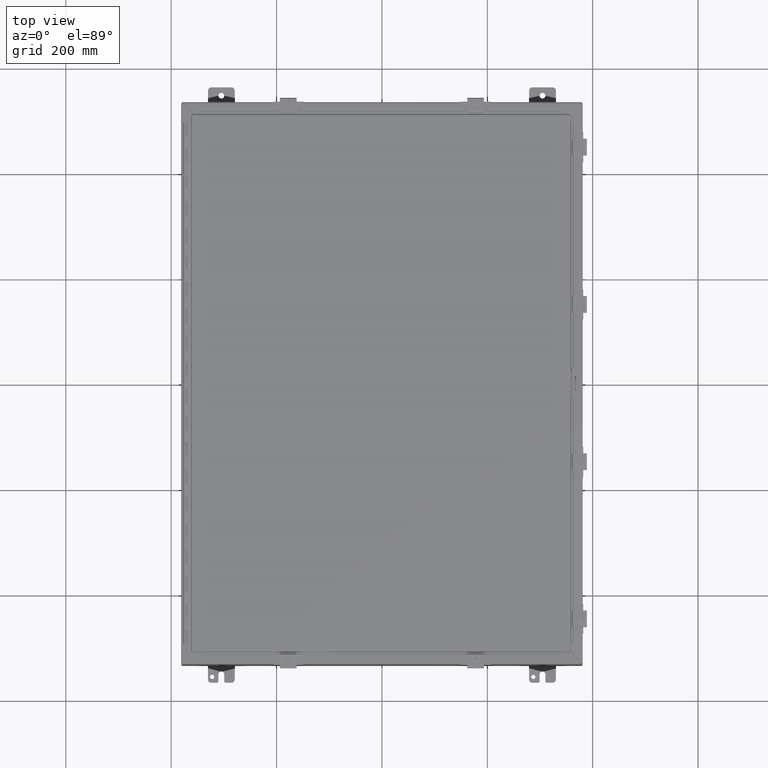
[diagram: clean part render]
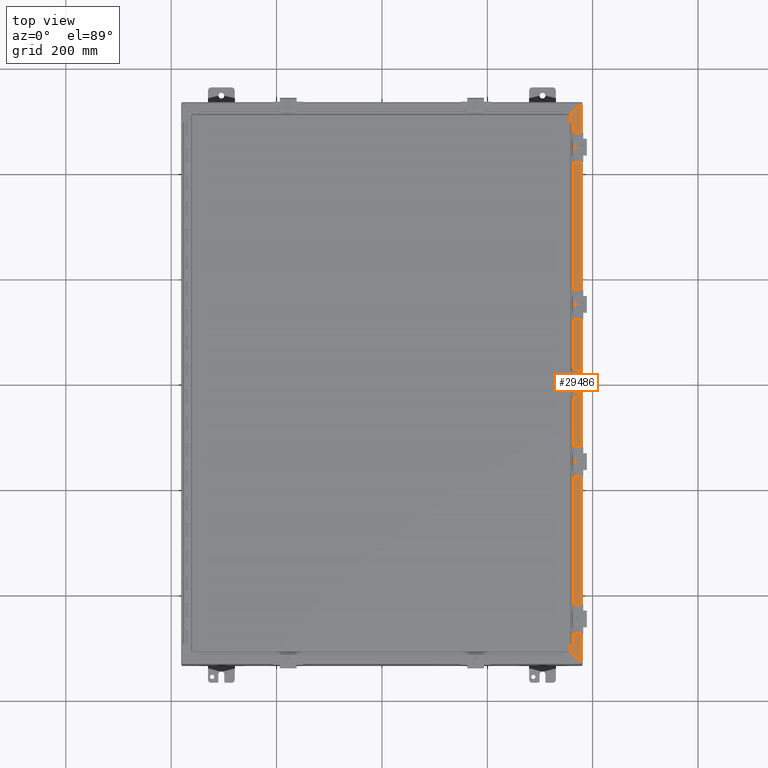
[diagram: same view with one face highlighted and labeled with its STEP entity id]
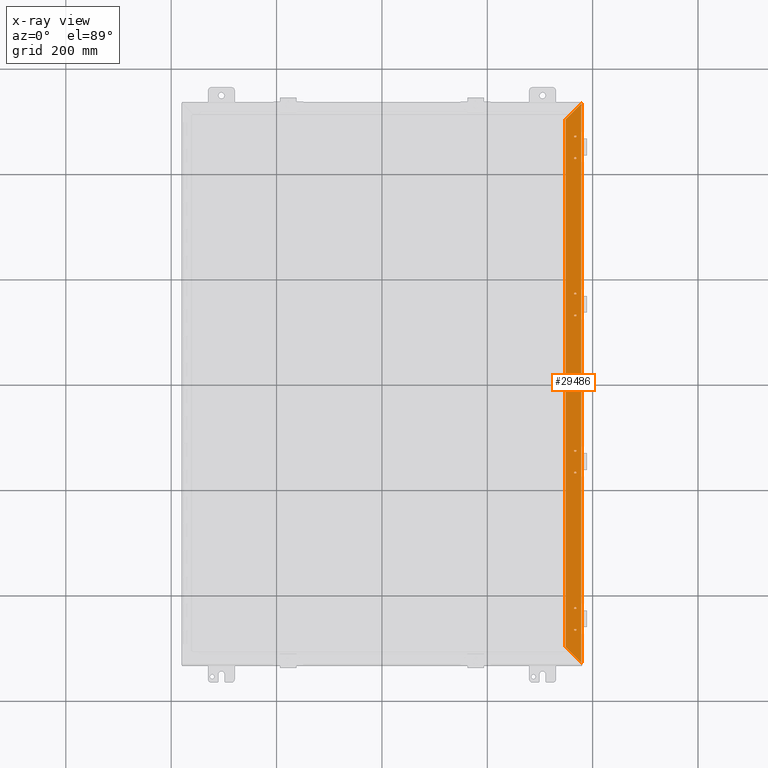
[diagram: x-ray of the same camera — body ghosted, the highlighted face saturated]
A machine part, top view. The second image highlights one B-rep face of the part: STEP entity #29486.
The next image is the same camera in x-ray: the body ghosted, the highlighted face saturated — about 0% of this face is hidden behind the body in this view.
In plain terms, the highlighted planar face has unit normal (0, 0, 1).
Its self-contained STEP definition (entity closure, byte-faithful):
#147 = LINE ( 'NONE', #39565, #36252 ) ;
#356 = VECTOR ( 'NONE', #57371, 39.37007874015748900 ) ;
#614 = DIRECTION ( 'NONE',  ( 1.000000000000000000, 0.0000000000000000000, 0.0000000000000000000 ) ) ;
#1069 = CIRCLE ( 'NONE', #9218, 0.06250000000000001400 ) ;
#1196 = VECTOR ( 'NONE', #40140, 39.37007874015748100 ) ;
#1222 = CARTESIAN_POINT ( 'NONE',  ( 14.41750000000004100, -6.750000000000048800, 8.000000000000030200 ) ) ;
#1224 = CIRCLE ( 'NONE', #22996, 0.06250000000000076300 ) ;
#1354 = EDGE_CURVE ( 'NONE', #31624, #9641, #40587, .T. ) ;
#1472 = DIRECTION ( 'NONE',  ( 0.0000000000000000000, -1.000000000000000000, 0.0000000000000000000 ) ) ;
#1707 = VECTOR ( 'NONE', #57162, 39.37007874015748100 ) ;
#1743 = DIRECTION ( 'NONE',  ( 1.000000000000000000, 0.0000000000000000000, 0.0000000000000000000 ) ) ;
#2043 = CARTESIAN_POINT ( 'NONE',  ( 14.48050000000004200, 18.49999999999995700, 8.000000000000023100 ) ) ;
#2323 = ORIENTED_EDGE ( 'NONE', *, *, #41902, .T. ) ;
#2618 = LINE ( 'NONE', #39609, #51890 ) ;
#2809 = EDGE_CURVE ( 'NONE', #51030, #15716, #50724, .T. ) ;
#2900 = EDGE_LOOP ( 'NONE', ( #32883, #22177, #13727, #33808 ) ) ;
#3260 = VECTOR ( 'NONE', #41837, 39.37007874015748900 ) ;
#3571 = VERTEX_POINT ( 'NONE', #15880 ) ;
#3626 = DIRECTION ( 'NONE',  ( 0.0000000000000000000, 0.0000000000000000000, -1.000000000000000000 ) ) ;
#3923 = AXIS2_PLACEMENT_3D ( 'NONE', #17632, #17433, #17380 ) ;
#5093 = EDGE_CURVE ( 'NONE', #27920, #40037, #11221, .T. ) ;
#5108 = CARTESIAN_POINT ( 'NONE',  ( 14.41750000000004100, -5.000000000000051500, 8.000000000000030200 ) ) ;
#5123 = ORIENTED_EDGE ( 'NONE', *, *, #30626, .T. ) ;
#5147 = ORIENTED_EDGE ( 'NONE', *, *, #34115, .T. ) ;
#5244 = VERTEX_POINT ( 'NONE', #48290 ) ;
#5544 = ORIENTED_EDGE ( 'NONE', *, *, #41427, .T. ) ;
#5676 = EDGE_LOOP ( 'NONE', ( #19042, #23242, #57213, #19012 ) ) ;
#5903 = VERTEX_POINT ( 'NONE', #18271 ) ;
#6335 = CARTESIAN_POINT ( 'NONE',  ( 14.48050000000004200, 18.37499999999995700, 8.000000000000023100 ) ) ;
#6354 = CARTESIAN_POINT ( 'NONE',  ( 14.48050000000004200, -18.50000000000005300, 8.000000000000030200 ) ) ;
#6458 = DIRECTION ( 'NONE',  ( -1.000000000000000000, 0.0000000000000000000, 0.0000000000000000000 ) ) ;
#6547 = VECTOR ( 'NONE', #22588, 39.37007874015748100 ) ;
#6969 = VERTEX_POINT ( 'NONE', #34572 ) ;
#7242 = DIRECTION ( 'NONE',  ( 0.0000000000000000000, 0.0000000000000000000, -1.000000000000000000 ) ) ;
#7251 = AXIS2_PLACEMENT_3D ( 'NONE', #43614, #15012, #48536 ) ;
#7503 = ORIENTED_EDGE ( 'NONE', *, *, #7835, .T. ) ;
#7651 = DIRECTION ( 'NONE',  ( 1.000000000000000000, 0.0000000000000000000, 0.0000000000000000000 ) ) ;
#7665 = LINE ( 'NONE', #52648, #51840 ) ;
#7700 = VERTEX_POINT ( 'NONE', #47071 ) ;
#7829 = CARTESIAN_POINT ( 'NONE',  ( 14.48050000000004200, -16.87500000000005300, 8.000000000000032000 ) ) ;
#7835 = EDGE_CURVE ( 'NONE', #8749, #7700, #46953, .T. ) ;
#8269 = LINE ( 'NONE', #23932, #19372 ) ;
#8275 = VERTEX_POINT ( 'NONE', #20884 ) ;
#8303 = CARTESIAN_POINT ( 'NONE',  ( 14.48050000000004200, 6.624999999999953800, 8.000000000000026600 ) ) ;
#8339 = VERTEX_POINT ( 'NONE', #18868 ) ;
#8350 = EDGE_LOOP ( 'NONE', ( #15692, #2323, #53378, #21778 ) ) ;
#8380 = VECTOR ( 'NONE', #39327, 39.37007874015748100 ) ;
#8551 = CARTESIAN_POINT ( 'NONE',  ( 14.48050000000004200, 6.749999999999952000, 8.000000000000026600 ) ) ;
#8749 = VERTEX_POINT ( 'NONE', #44265 ) ;
#8808 = ORIENTED_EDGE ( 'NONE', *, *, #60139, .T. ) ;
#9097 = VERTEX_POINT ( 'NONE', #15619 ) ;
#9112 = EDGE_LOOP ( 'NONE', ( #47831, #51290, #13375, #57409 ) ) ;
#9218 = AXIS2_PLACEMENT_3D ( 'NONE', #22030, #55638, #26827 ) ;
#9641 = VERTEX_POINT ( 'NONE', #48004 ) ;
#9803 = EDGE_CURVE ( 'NONE', #5903, #14774, #39660, .T. ) ;
#10234 = AXIS2_PLACEMENT_3D ( 'NONE', #59613, #59531, #59411 ) ;
#10512 = FACE_BOUND ( 'NONE', #12098, .T. ) ;
#10752 = CIRCLE ( 'NONE', #35844, 0.06249999999999967400 ) ;
#11071 = DIRECTION ( 'NONE',  ( 1.000000000000000000, 0.0000000000000000000, 0.0000000000000000000 ) ) ;
#11221 = LINE ( 'NONE', #56926, #36510 ) ;
#11369 = CARTESIAN_POINT ( 'NONE',  ( 14.41750000000004100, 5.062499999999953800, 8.000000000000026600 ) ) ;
#11785 = VECTOR ( 'NONE', #57032, 39.37007874015748100 ) ;
#11892 = EDGE_CURVE ( 'NONE', #16389, #36736, #7665, .T. ) ;
#11982 = FACE_BOUND ( 'NONE', #2900, .T. ) ;
#12098 = EDGE_LOOP ( 'NONE', ( #5544, #7503, #54342, #27606 ) ) ;
#12148 = CARTESIAN_POINT ( 'NONE',  ( 14.41750000000004100, -16.75000000000005300, 8.000000000000032000 ) ) ;
#12171 = EDGE_CURVE ( 'NONE', #17350, #34079, #40368, .T. ) ;
#12776 = DIRECTION ( 'NONE',  ( 1.000000000000000000, 0.0000000000000000000, 0.0000000000000000000 ) ) ;
#12810 = AXIS2_PLACEMENT_3D ( 'NONE', #11369, #44741, #16095 ) ;
#12933 = VERTEX_POINT ( 'NONE', #15452 ) ;
#12979 = CARTESIAN_POINT ( 'NONE',  ( 14.48050000000004200, 16.87499999999995700, 8.000000000000023100 ) ) ;
#13011 = ORIENTED_EDGE ( 'NONE', *, *, #5093, .T. ) ;
#13124 = CARTESIAN_POINT ( 'NONE',  ( 14.08450000000004300, 0.06250000000000001400, 8.000000000000040900 ) ) ;
#13370 = DIRECTION ( 'NONE',  ( 0.0000000000000000000, 0.0000000000000000000, -1.000000000000000000 ) ) ;
#13375 = ORIENTED_EDGE ( 'NONE', *, *, #56957, .T. ) ;
#13727 = ORIENTED_EDGE ( 'NONE', *, *, #45829, .T. ) ;
#14221 = EDGE_CURVE ( 'NONE', #5244, #3571, #54268, .T. ) ;
#14304 = EDGE_CURVE ( 'NONE', #12933, #47894, #38348, .T. ) ;
#14370 = VERTEX_POINT ( 'NONE', #52534 ) ;
#14774 = VERTEX_POINT ( 'NONE', #32649 ) ;
#14983 = EDGE_LOOP ( 'NONE', ( #22400, #37155, #20451, #39908 ) ) ;
#15012 = DIRECTION ( 'NONE',  ( 0.0000000000000000000, 0.0000000000000000000, 1.000000000000000000 ) ) ;
#15420 = CARTESIAN_POINT ( 'NONE',  ( 14.48050000000004200, -5.125000000000049700, 8.000000000000026600 ) ) ;
#15452 = CARTESIAN_POINT ( 'NONE',  ( 14.48050000000004200, 16.74999999999995700, 8.000000000000023100 ) ) ;
#15619 = CARTESIAN_POINT ( 'NONE',  ( 14.14750000000004200, -0.06250000000000001400, 8.000000000000040900 ) ) ;
#15692 = ORIENTED_EDGE ( 'NONE', *, *, #41439, .T. ) ;
#15716 = VERTEX_POINT ( 'NONE', #36937 ) ;
#15795 = ORIENTED_EDGE ( 'NONE', *, *, #22476, .T. ) ;
#15880 = CARTESIAN_POINT ( 'NONE',  ( 14.41750000000004100, -16.75000000000005300, 8.000000000000032000 ) ) ;
#16095 = DIRECTION ( 'NONE',  ( 0.0000000000000000000, 1.000000000000000000, 0.0000000000000000000 ) ) ;
#16389 = VERTEX_POINT ( 'NONE', #58526 ) ;
#16500 = AXIS2_PLACEMENT_3D ( 'NONE', #59117, #59035, #58991 ) ;
#17200 = CARTESIAN_POINT ( 'NONE',  ( 14.48050000000004200, -5.062500000000049700, 8.000000000000021300 ) ) ;
#17245 = ORIENTED_EDGE ( 'NONE', *, *, #47047, .T. ) ;
#17350 = VERTEX_POINT ( 'NONE', #28200 ) ;
#17380 = DIRECTION ( 'NONE',  ( 0.0000000000000000000, -1.000000000000000000, 0.0000000000000000000 ) ) ;
#17426 = EDGE_CURVE ( 'NONE', #34079, #6969, #34009, .T. ) ;
#17433 = DIRECTION ( 'NONE',  ( 0.0000000000000000000, 0.0000000000000000000, -1.000000000000000000 ) ) ;
#17496 = LINE ( 'NONE', #20109, #55740 ) ;
#17618 = DIRECTION ( 'NONE',  ( 0.0000000000000000000, 0.0000000000000000000, -1.000000000000000000 ) ) ;
#17632 = CARTESIAN_POINT ( 'NONE',  ( 14.48050000000004200, -6.687500000000049700, 8.000000000000021300 ) ) ;
#17951 = CARTESIAN_POINT ( 'NONE',  ( 14.41750000000004100, 5.124999999999952900, 8.000000000000026600 ) ) ;
#18173 = EDGE_CURVE ( 'NONE', #3571, #14370, #21159, .T. ) ;
#18200 = EDGE_LOOP ( 'NONE', ( #17245, #53720, #27504, #57812 ) ) ;
#18271 = CARTESIAN_POINT ( 'NONE',  ( 13.73025000000003700, 19.71920145654402000, 8.000000000000048000 ) ) ;
#18287 = AXIS2_PLACEMENT_3D ( 'NONE', #46273, #17618, #51210 ) ;
#18776 = CIRCLE ( 'NONE', #40771, 0.06250000000000076300 ) ;
#18868 = CARTESIAN_POINT ( 'NONE',  ( 14.41750000000004100, 6.624999999999953800, 8.000000000000026600 ) ) ;
#18900 = CIRCLE ( 'NONE', #58958, 0.06250000000000001400 ) ;
#19012 = ORIENTED_EDGE ( 'NONE', *, *, #21316, .T. ) ;
#19042 = ORIENTED_EDGE ( 'NONE', *, *, #11892, .T. ) ;
#19227 = DIRECTION ( 'NONE',  ( 0.0000000000000000000, 0.0000000000000000000, -1.000000000000000000 ) ) ;
#19315 = CARTESIAN_POINT ( 'NONE',  ( 14.48050000000004200, -6.625000000000050600, 8.000000000000026600 ) ) ;
#19372 = VECTOR ( 'NONE', #614, 39.37007874015748100 ) ;
#19413 = VERTEX_POINT ( 'NONE', #8551 ) ;
#19658 = VECTOR ( 'NONE', #7651, 39.37007874015748100 ) ;
#19880 = CIRCLE ( 'NONE', #26745, 0.06249999999999967400 ) ;
#19970 = EDGE_CURVE ( 'NONE', #36736, #46966, #40329, .T. ) ;
#20109 = CARTESIAN_POINT ( 'NONE',  ( 14.14750000000004200, -0.06250000000000001400, 8.000000000000040900 ) ) ;
#20451 = ORIENTED_EDGE ( 'NONE', *, *, #18173, .T. ) ;
#20612 = DIRECTION ( 'NONE',  ( 0.0000000000000000000, 1.000000000000000000, 0.0000000000000000000 ) ) ;
#20838 = CIRCLE ( 'NONE', #12810, 0.06249999999999967400 ) ;
#20884 = CARTESIAN_POINT ( 'NONE',  ( 14.89475000000004100, -20.88370145654401000, 8.000000000000008900 ) ) ;
#20976 = AXIS2_PLACEMENT_3D ( 'NONE', #40308, #40100, #40026 ) ;
#21159 = LINE ( 'NONE', #12148, #19658 ) ;
#21311 = VECTOR ( 'NONE', #27253, 39.37007874015748100 ) ;
#21316 = EDGE_CURVE ( 'NONE', #44579, #16389, #21324, .T. ) ;
#21324 = CIRCLE ( 'NONE', #3923, 0.06249999999999967400 ) ;
#21586 = FACE_BOUND ( 'NONE', #14983, .T. ) ;
#21706 = CARTESIAN_POINT ( 'NONE',  ( 14.48050000000004200, 5.124999999999952900, 8.000000000000026600 ) ) ;
#21778 = ORIENTED_EDGE ( 'NONE', *, *, #30548, .T. ) ;
#21949 = DIRECTION ( 'NONE',  ( 0.0000000000000000000, -1.000000000000000000, 0.0000000000000000000 ) ) ;
#22030 = CARTESIAN_POINT ( 'NONE',  ( 14.08450000000004300, -2.185478000000000500E-016, 8.000000000000051500 ) ) ;
#22177 = ORIENTED_EDGE ( 'NONE', *, *, #34936, .T. ) ;
#22283 = CARTESIAN_POINT ( 'NONE',  ( 14.41750000000004100, -18.37500000000005300, 8.000000000000032000 ) ) ;
#22400 = ORIENTED_EDGE ( 'NONE', *, *, #26594, .T. ) ;
#22436 = LINE ( 'NONE', #30119, #8380 ) ;
#22476 = EDGE_CURVE ( 'NONE', #6969, #59845, #26361, .T. ) ;
#22588 = DIRECTION ( 'NONE',  ( 0.0000000000000000000, -1.000000000000000000, 0.0000000000000000000 ) ) ;
#22888 = VERTEX_POINT ( 'NONE', #29931 ) ;
#22996 = AXIS2_PLACEMENT_3D ( 'NONE', #32041, #3626, #36869 ) ;
#23078 = FACE_BOUND ( 'NONE', #5676, .T. ) ;
#23140 = LINE ( 'NONE', #17951, #59834 ) ;
#23242 = ORIENTED_EDGE ( 'NONE', *, *, #19970, .T. ) ;
#23316 = CARTESIAN_POINT ( 'NONE',  ( 14.41750000000004100, 16.81249999999996100, 8.000000000000026600 ) ) ;
#23428 = VECTOR ( 'NONE', #12776, 39.37007874015748100 ) ;
#23825 = CARTESIAN_POINT ( 'NONE',  ( 14.48050000000004200, 6.624999999999953800, 8.000000000000023100 ) ) ;
#23932 = CARTESIAN_POINT ( 'NONE',  ( 14.41750000000004100, -18.37500000000005300, 8.000000000000032000 ) ) ;
#24347 = CARTESIAN_POINT ( 'NONE',  ( 14.41750000000004100, -5.125000000000049700, 8.000000000000030200 ) ) ;
#24386 = LINE ( 'NONE', #52097, #11785 ) ;
#24482 = CARTESIAN_POINT ( 'NONE',  ( 14.41750000000004100, -6.625000000000050600, 8.000000000000030200 ) ) ;
#24591 = FACE_OUTER_BOUND ( 'NONE', #30688, .T. ) ;
#24845 = CARTESIAN_POINT ( 'NONE',  ( 14.48050000000004200, -16.81250000000005000, 8.000000000000021300 ) ) ;
#25101 = VECTOR ( 'NONE', #32604, 39.37007874015748100 ) ;
#25267 = LINE ( 'NONE', #42839, #356 ) ;
#25891 = CARTESIAN_POINT ( 'NONE',  ( 14.48050000000004200, -18.50000000000005300, 8.000000000000032000 ) ) ;
#26254 = ORIENTED_EDGE ( 'NONE', *, *, #50312, .F. ) ;
#26361 = CIRCLE ( 'NONE', #31003, 0.06250000000000076300 ) ;
#26594 = EDGE_CURVE ( 'NONE', #39802, #5244, #49211, .T. ) ;
#26745 = AXIS2_PLACEMENT_3D ( 'NONE', #55576, #26771, #60240 ) ;
#26771 = DIRECTION ( 'NONE',  ( 0.0000000000000000000, 0.0000000000000000000, -1.000000000000000000 ) ) ;
#26827 = DIRECTION ( 'NONE',  ( 0.0000000000000000000, 1.000000000000000000, 0.0000000000000000000 ) ) ;
#27070 = VERTEX_POINT ( 'NONE', #55591 ) ;
#27085 = CARTESIAN_POINT ( 'NONE',  ( 14.41750000000004100, 16.74999999999995700, 8.000000000000026600 ) ) ;
#27181 = CARTESIAN_POINT ( 'NONE',  ( 13.73025000000004100, 19.71920145654401700, 8.000000000000051500 ) ) ;
#27253 = DIRECTION ( 'NONE',  ( -1.000000000000000000, 0.0000000000000000000, 0.0000000000000000000 ) ) ;
#27484 = CARTESIAN_POINT ( 'NONE',  ( 14.48050000000004200, -16.87500000000005300, 8.000000000000030200 ) ) ;
#27504 = ORIENTED_EDGE ( 'NONE', *, *, #1354, .T. ) ;
#27577 = AXIS2_PLACEMENT_3D ( 'NONE', #43915, #43870, #43859 ) ;
#27606 = ORIENTED_EDGE ( 'NONE', *, *, #34320, .T. ) ;
#27920 = VERTEX_POINT ( 'NONE', #15420 ) ;
#28098 = DIRECTION ( 'NONE',  ( 0.0000000000000000000, 1.000000000000000000, 0.0000000000000000000 ) ) ;
#28200 = CARTESIAN_POINT ( 'NONE',  ( 14.48050000000004200, -18.37500000000005300, 8.000000000000030200 ) ) ;
#28295 = CIRCLE ( 'NONE', #46017, 0.06250000000000076300 ) ;
#28373 = LINE ( 'NONE', #23825, #34405 ) ;
#28615 = DIRECTION ( 'NONE',  ( -1.000000000000000000, 0.0000000000000000000, 0.0000000000000000000 ) ) ;
#28926 = CARTESIAN_POINT ( 'NONE',  ( 14.41750000000004000, -5.000000000000051500, 8.000000000000030200 ) ) ;
#29249 = EDGE_CURVE ( 'NONE', #27070, #36215, #23140, .T. ) ;
#29486 = ADVANCED_FACE ( 'NONE', ( #24591, #48667, #61231, #59770, #23078, #10512, #11982, #47127, #34307, #21586 ), #48328, .T. ) ;
#29611 = DIRECTION ( 'NONE',  ( 0.0000000000000000000, -1.000000000000000000, 0.0000000000000000000 ) ) ;
#29643 = DIRECTION ( 'NONE',  ( 0.0000000000000000000, 0.0000000000000000000, -1.000000000000000000 ) ) ;
#29699 = EDGE_CURVE ( 'NONE', #38745, #31624, #1069, .T. ) ;
#29771 = VERTEX_POINT ( 'NONE', #56031 ) ;
#29931 = CARTESIAN_POINT ( 'NONE',  ( 14.41750000000004100, 4.999999999999954700, 8.000000000000026600 ) ) ;
#29959 = CARTESIAN_POINT ( 'NONE',  ( 14.41750000000004100, 16.87499999999995700, 8.000000000000023100 ) ) ;
#30119 = CARTESIAN_POINT ( 'NONE',  ( 14.48050000000004200, 18.37499999999995700, 8.000000000000021300 ) ) ;
#30548 = EDGE_CURVE ( 'NONE', #36215, #29771, #19880, .T. ) ;
#30609 = CIRCLE ( 'NONE', #52373, 0.06249999999999967400 ) ;
#30626 = EDGE_CURVE ( 'NONE', #5903, #35414, #31799, .T. ) ;
#30688 = EDGE_LOOP ( 'NONE', ( #5123, #26254, #5147, #48226 ) ) ;
#30924 = EDGE_CURVE ( 'NONE', #19413, #39045, #40783, .T. ) ;
#31003 = AXIS2_PLACEMENT_3D ( 'NONE', #46510, #46446, #46242 ) ;
#31338 = VECTOR ( 'NONE', #1743, 39.37007874015748100 ) ;
#31624 = VERTEX_POINT ( 'NONE', #34183 ) ;
#31799 = LINE ( 'NONE', #27181, #6547 ) ;
#32041 = CARTESIAN_POINT ( 'NONE',  ( 14.48050000000004200, 18.43749999999995400, 8.000000000000021300 ) ) ;
#32604 = DIRECTION ( 'NONE',  ( 1.000000000000000000, 0.0000000000000000000, 0.0000000000000000000 ) ) ;
#32649 = CARTESIAN_POINT ( 'NONE',  ( 14.89475000000004100, 20.88370145654401400, 8.000000000000003600 ) ) ;
#32883 = ORIENTED_EDGE ( 'NONE', *, *, #44979, .T. ) ;
#33808 = ORIENTED_EDGE ( 'NONE', *, *, #30924, .T. ) ;
#34009 = LINE ( 'NONE', #25891, #21311 ) ;
#34079 = VERTEX_POINT ( 'NONE', #6354 ) ;
#34115 = EDGE_CURVE ( 'NONE', #8275, #14774, #2618, .T. ) ;
#34183 = CARTESIAN_POINT ( 'NONE',  ( 14.08450000000004300, 0.06250000000000001400, 8.000000000000040900 ) ) ;
#34307 = FACE_BOUND ( 'NONE', #38237, .T. ) ;
#34320 = EDGE_CURVE ( 'NONE', #47104, #57011, #1224, .T. ) ;
#34405 = VECTOR ( 'NONE', #28615, 39.37007874015748100 ) ;
#34572 = CARTESIAN_POINT ( 'NONE',  ( 14.41750000000004100, -18.50000000000005300, 8.000000000000032000 ) ) ;
#34936 = EDGE_CURVE ( 'NONE', #8339, #39812, #54649, .T. ) ;
#35414 = VERTEX_POINT ( 'NONE', #43564 ) ;
#35706 = CARTESIAN_POINT ( 'NONE',  ( 14.14750000000004200, -3.059670000000000700E-016, 8.000000000000046200 ) ) ;
#35828 = ORIENTED_EDGE ( 'NONE', *, *, #47507, .T. ) ;
#35844 = AXIS2_PLACEMENT_3D ( 'NONE', #47950, #19227, #52893 ) ;
#36215 = VERTEX_POINT ( 'NONE', #21706 ) ;
#36252 = VECTOR ( 'NONE', #11071, 39.37007874015748100 ) ;
#36325 = VECTOR ( 'NONE', #6458, 39.37007874015748100 ) ;
#36510 = VECTOR ( 'NONE', #57340, 39.37007874015748100 ) ;
#36736 = VERTEX_POINT ( 'NONE', #1222 ) ;
#36868 = EDGE_LOOP ( 'NONE', ( #13011, #35828, #41213, #37650 ) ) ;
#36869 = DIRECTION ( 'NONE',  ( 0.0000000000000000000, -1.000000000000000000, 0.0000000000000000000 ) ) ;
#36937 = CARTESIAN_POINT ( 'NONE',  ( 14.48050000000004200, -5.000000000000051500, 8.000000000000026600 ) ) ;
#37155 = ORIENTED_EDGE ( 'NONE', *, *, #14221, .T. ) ;
#37650 = ORIENTED_EDGE ( 'NONE', *, *, #38985, .T. ) ;
#38155 = EDGE_CURVE ( 'NONE', #9641, #9097, #18900, .T. ) ;
#38237 = EDGE_LOOP ( 'NONE', ( #50119, #15795, #8808, #43800 ) ) ;
#38347 = EDGE_CURVE ( 'NONE', #58828, #12933, #57811, .T. ) ;
#38348 = LINE ( 'NONE', #56200, #51264 ) ;
#38745 = VERTEX_POINT ( 'NONE', #57598 ) ;
#38890 = LINE ( 'NONE', #59022, #1196 ) ;
#38985 = EDGE_CURVE ( 'NONE', #15716, #27920, #30609, .T. ) ;
#39045 = VERTEX_POINT ( 'NONE', #8303 ) ;
#39072 = VERTEX_POINT ( 'NONE', #56159 ) ;
#39327 = DIRECTION ( 'NONE',  ( -1.000000000000000000, 0.0000000000000000000, 0.0000000000000000000 ) ) ;
#39451 = LINE ( 'NONE', #52448, #1707 ) ;
#39565 = CARTESIAN_POINT ( 'NONE',  ( 14.41750000000004100, 18.49999999999995700, 8.000000000000023100 ) ) ;
#39609 = CARTESIAN_POINT ( 'NONE',  ( 14.89475000000004100, -20.88370145654401400, 8.000000000000012400 ) ) ;
#39660 = LINE ( 'NONE', #43652, #3260 ) ;
#39802 = VERTEX_POINT ( 'NONE', #27484 ) ;
#39812 = VERTEX_POINT ( 'NONE', #41504 ) ;
#39908 = ORIENTED_EDGE ( 'NONE', *, *, #41798, .T. ) ;
#40026 = DIRECTION ( 'NONE',  ( 0.0000000000000000000, 1.000000000000000000, 0.0000000000000000000 ) ) ;
#40037 = VERTEX_POINT ( 'NONE', #24347 ) ;
#40100 = DIRECTION ( 'NONE',  ( 0.0000000000000000000, 0.0000000000000000000, -1.000000000000000000 ) ) ;
#40140 = DIRECTION ( 'NONE',  ( -1.000000000000000000, 0.0000000000000000000, 0.0000000000000000000 ) ) ;
#40308 = CARTESIAN_POINT ( 'NONE',  ( 14.41750000000004100, 18.43749999999995400, 8.000000000000026600 ) ) ;
#40329 = CIRCLE ( 'NONE', #16500, 0.06249999999999967400 ) ;
#40368 = CIRCLE ( 'NONE', #27577, 0.06250000000000076300 ) ;
#40454 = EDGE_CURVE ( 'NONE', #46966, #44579, #24386, .T. ) ;
#40511 = DIRECTION ( 'NONE',  ( 0.0000000000000000000, -1.000000000000000000, 0.0000000000000000000 ) ) ;
#40587 = LINE ( 'NONE', #13124, #23428 ) ;
#40771 = AXIS2_PLACEMENT_3D ( 'NONE', #23316, #56893, #28098 ) ;
#40783 = CIRCLE ( 'NONE', #43628, 0.06249999999999967400 ) ;
#41213 = ORIENTED_EDGE ( 'NONE', *, *, #2809, .T. ) ;
#41427 = EDGE_CURVE ( 'NONE', #57011, #8749, #22436, .T. ) ;
#41439 = EDGE_CURVE ( 'NONE', #29771, #22888, #38890, .T. ) ;
#41504 = CARTESIAN_POINT ( 'NONE',  ( 14.41750000000004100, 6.749999999999952000, 8.000000000000026600 ) ) ;
#41798 = EDGE_CURVE ( 'NONE', #14370, #39802, #28295, .T. ) ;
#41837 = DIRECTION ( 'NONE',  ( 0.7071067811865479100, 0.7071067811865469100, -2.804458999999999700E-014 ) ) ;
#41902 = EDGE_CURVE ( 'NONE', #22888, #27070, #20838, .T. ) ;
#41923 = CARTESIAN_POINT ( 'NONE',  ( 14.48050000000004200, 16.81249999999996100, 8.000000000000021300 ) ) ;
#42543 = LINE ( 'NONE', #29959, #31338 ) ;
#42839 = CARTESIAN_POINT ( 'NONE',  ( 14.89475000000004300, -20.88370145654401000, 8.000000000000012400 ) ) ;
#43564 = CARTESIAN_POINT ( 'NONE',  ( 13.73025000000004100, -19.71920145654401300, 8.000000000000051500 ) ) ;
#43614 = CARTESIAN_POINT ( 'NONE',  ( 14.30301692111546100, -1.377811000000000200E-015, 8.000000000000032000 ) ) ;
#43628 = AXIS2_PLACEMENT_3D ( 'NONE', #58370, #29643, #1472 ) ;
#43652 = CARTESIAN_POINT ( 'NONE',  ( 13.73025000000004100, 19.71920145654401700, 8.000000000000051500 ) ) ;
#43800 = ORIENTED_EDGE ( 'NONE', *, *, #12171, .T. ) ;
#43859 = DIRECTION ( 'NONE',  ( 0.0000000000000000000, -1.000000000000000000, 0.0000000000000000000 ) ) ;
#43870 = DIRECTION ( 'NONE',  ( 0.0000000000000000000, 0.0000000000000000000, -1.000000000000000000 ) ) ;
#43915 = CARTESIAN_POINT ( 'NONE',  ( 14.48050000000004200, -18.43750000000005300, 8.000000000000021300 ) ) ;
#44124 = AXIS2_PLACEMENT_3D ( 'NONE', #41923, #13370, #46818 ) ;
#44265 = CARTESIAN_POINT ( 'NONE',  ( 14.41750000000004100, 18.37499999999995700, 8.000000000000026600 ) ) ;
#44579 = VERTEX_POINT ( 'NONE', #19315 ) ;
#44741 = DIRECTION ( 'NONE',  ( 0.0000000000000000000, 0.0000000000000000000, -1.000000000000000000 ) ) ;
#44979 = EDGE_CURVE ( 'NONE', #39045, #8339, #28373, .T. ) ;
#45829 = EDGE_CURVE ( 'NONE', #39812, #19413, #39451, .T. ) ;
#46017 = AXIS2_PLACEMENT_3D ( 'NONE', #24845, #58344, #29611 ) ;
#46242 = DIRECTION ( 'NONE',  ( 0.0000000000000000000, 1.000000000000000000, 0.0000000000000000000 ) ) ;
#46273 = CARTESIAN_POINT ( 'NONE',  ( 14.41750000000004100, 6.687499999999952900, 8.000000000000026600 ) ) ;
#46446 = DIRECTION ( 'NONE',  ( 0.0000000000000000000, 0.0000000000000000000, -1.000000000000000000 ) ) ;
#46510 = CARTESIAN_POINT ( 'NONE',  ( 14.41750000000004100, -18.43750000000005300, 8.000000000000026600 ) ) ;
#46573 = EDGE_CURVE ( 'NONE', #7700, #47104, #147, .T. ) ;
#46632 = DIRECTION ( 'NONE',  ( 1.000000000000000000, 0.0000000000000000000, 0.0000000000000000000 ) ) ;
#46818 = DIRECTION ( 'NONE',  ( 0.0000000000000000000, -1.000000000000000000, 0.0000000000000000000 ) ) ;
#46953 = CIRCLE ( 'NONE', #20976, 0.06250000000000076300 ) ;
#46966 = VERTEX_POINT ( 'NONE', #24482 ) ;
#47047 = EDGE_CURVE ( 'NONE', #9097, #38745, #17496, .T. ) ;
#47071 = CARTESIAN_POINT ( 'NONE',  ( 14.41750000000004100, 18.49999999999995700, 8.000000000000026600 ) ) ;
#47104 = VERTEX_POINT ( 'NONE', #2043 ) ;
#47127 = FACE_BOUND ( 'NONE', #36868, .T. ) ;
#47507 = EDGE_CURVE ( 'NONE', #40037, #51030, #10752, .T. ) ;
#47831 = ORIENTED_EDGE ( 'NONE', *, *, #14304, .T. ) ;
#47894 = VERTEX_POINT ( 'NONE', #27085 ) ;
#47950 = CARTESIAN_POINT ( 'NONE',  ( 14.41750000000004100, -5.062500000000049700, 8.000000000000026600 ) ) ;
#48004 = CARTESIAN_POINT ( 'NONE',  ( 14.14750000000004200, 0.06250000000000001400, 8.000000000000040900 ) ) ;
#48226 = ORIENTED_EDGE ( 'NONE', *, *, #9803, .F. ) ;
#48290 = CARTESIAN_POINT ( 'NONE',  ( 14.41750000000004100, -16.87500000000005300, 8.000000000000032000 ) ) ;
#48328 = PLANE ( 'NONE',  #7251 ) ;
#48536 = DIRECTION ( 'NONE',  ( 1.000000000000000000, 0.0000000000000000000, 0.0000000000000000000 ) ) ;
#48667 = FACE_BOUND ( 'NONE', #18200, .T. ) ;
#49211 = LINE ( 'NONE', #7829, #36325 ) ;
#49295 = EDGE_CURVE ( 'NONE', #47894, #39072, #18776, .T. ) ;
#50119 = ORIENTED_EDGE ( 'NONE', *, *, #17426, .T. ) ;
#50312 = EDGE_CURVE ( 'NONE', #8275, #35414, #25267, .T. ) ;
#50724 = LINE ( 'NONE', #28926, #25101 ) ;
#50774 = DIRECTION ( 'NONE',  ( 0.0000000000000000000, 0.0000000000000000000, -1.000000000000000000 ) ) ;
#51030 = VERTEX_POINT ( 'NONE', #5108 ) ;
#51210 = DIRECTION ( 'NONE',  ( 0.0000000000000000000, 1.000000000000000000, 0.0000000000000000000 ) ) ;
#51264 = VECTOR ( 'NONE', #57412, 39.37007874015748100 ) ;
#51290 = ORIENTED_EDGE ( 'NONE', *, *, #49295, .T. ) ;
#51840 = VECTOR ( 'NONE', #52372, 39.37007874015748100 ) ;
#51890 = VECTOR ( 'NONE', #20612, 39.37007874015748100 ) ;
#52097 = CARTESIAN_POINT ( 'NONE',  ( 14.41750000000004100, -6.625000000000050600, 8.000000000000032000 ) ) ;
#52372 = DIRECTION ( 'NONE',  ( -1.000000000000000000, 0.0000000000000000000, 0.0000000000000000000 ) ) ;
#52373 = AXIS2_PLACEMENT_3D ( 'NONE', #17200, #50774, #21949 ) ;
#52448 = CARTESIAN_POINT ( 'NONE',  ( 14.41750000000004100, 6.749999999999952000, 8.000000000000026600 ) ) ;
#52534 = CARTESIAN_POINT ( 'NONE',  ( 14.48050000000004200, -16.75000000000005300, 8.000000000000030200 ) ) ;
#52648 = CARTESIAN_POINT ( 'NONE',  ( 14.48050000000004200, -6.750000000000048800, 8.000000000000026600 ) ) ;
#52893 = DIRECTION ( 'NONE',  ( 0.0000000000000000000, 1.000000000000000000, 0.0000000000000000000 ) ) ;
#53378 = ORIENTED_EDGE ( 'NONE', *, *, #29249, .T. ) ;
#53720 = ORIENTED_EDGE ( 'NONE', *, *, #29699, .T. ) ;
#53773 = DIRECTION ( 'NONE',  ( -1.000000000000000000, 0.0000000000000000000, 0.0000000000000000000 ) ) ;
#54268 = CIRCLE ( 'NONE', #10234, 0.06250000000000076300 ) ;
#54342 = ORIENTED_EDGE ( 'NONE', *, *, #46573, .T. ) ;
#54649 = CIRCLE ( 'NONE', #18287, 0.06249999999999967400 ) ;
#55576 = CARTESIAN_POINT ( 'NONE',  ( 14.48050000000004200, 5.062499999999953800, 8.000000000000021300 ) ) ;
#55591 = CARTESIAN_POINT ( 'NONE',  ( 14.41750000000004100, 5.124999999999952900, 8.000000000000026600 ) ) ;
#55638 = DIRECTION ( 'NONE',  ( 0.0000000000000000000, 0.0000000000000000000, -1.000000000000000000 ) ) ;
#55740 = VECTOR ( 'NONE', #53773, 39.37007874015748100 ) ;
#56031 = CARTESIAN_POINT ( 'NONE',  ( 14.48050000000004200, 4.999999999999954700, 8.000000000000026600 ) ) ;
#56159 = CARTESIAN_POINT ( 'NONE',  ( 14.41750000000004100, 16.87499999999995700, 8.000000000000026600 ) ) ;
#56200 = CARTESIAN_POINT ( 'NONE',  ( 14.48050000000004200, 16.74999999999995700, 8.000000000000021300 ) ) ;
#56893 = DIRECTION ( 'NONE',  ( 0.0000000000000000000, 0.0000000000000000000, -1.000000000000000000 ) ) ;
#56926 = CARTESIAN_POINT ( 'NONE',  ( 14.48050000000004200, -5.125000000000049700, 8.000000000000026600 ) ) ;
#56957 = EDGE_CURVE ( 'NONE', #39072, #58828, #42543, .T. ) ;
#57011 = VERTEX_POINT ( 'NONE', #6335 ) ;
#57032 = DIRECTION ( 'NONE',  ( 1.000000000000000000, 0.0000000000000000000, 0.0000000000000000000 ) ) ;
#57162 = DIRECTION ( 'NONE',  ( 1.000000000000000000, 0.0000000000000000000, 0.0000000000000000000 ) ) ;
#57213 = ORIENTED_EDGE ( 'NONE', *, *, #40454, .T. ) ;
#57340 = DIRECTION ( 'NONE',  ( -1.000000000000000000, 0.0000000000000000000, 0.0000000000000000000 ) ) ;
#57371 = DIRECTION ( 'NONE',  ( -0.7071067811865474600, 0.7071067811865474600, 2.804459000000001600E-014 ) ) ;
#57409 = ORIENTED_EDGE ( 'NONE', *, *, #38347, .T. ) ;
#57412 = DIRECTION ( 'NONE',  ( -1.000000000000000000, 0.0000000000000000000, 0.0000000000000000000 ) ) ;
#57598 = CARTESIAN_POINT ( 'NONE',  ( 14.08450000000004300, -0.06250000000000001400, 8.000000000000040900 ) ) ;
#57811 = CIRCLE ( 'NONE', #44124, 0.06250000000000076300 ) ;
#57812 = ORIENTED_EDGE ( 'NONE', *, *, #38155, .T. ) ;
#58344 = DIRECTION ( 'NONE',  ( 0.0000000000000000000, 0.0000000000000000000, -1.000000000000000000 ) ) ;
#58370 = CARTESIAN_POINT ( 'NONE',  ( 14.48050000000004200, 6.687499999999952900, 8.000000000000021300 ) ) ;
#58526 = CARTESIAN_POINT ( 'NONE',  ( 14.48050000000004200, -6.750000000000048800, 8.000000000000026600 ) ) ;
#58828 = VERTEX_POINT ( 'NONE', #12979 ) ;
#58958 = AXIS2_PLACEMENT_3D ( 'NONE', #35706, #7242, #40511 ) ;
#58991 = DIRECTION ( 'NONE',  ( 0.0000000000000000000, 1.000000000000000000, 0.0000000000000000000 ) ) ;
#59022 = CARTESIAN_POINT ( 'NONE',  ( 14.48050000000004200, 4.999999999999954700, 8.000000000000023100 ) ) ;
#59035 = DIRECTION ( 'NONE',  ( 0.0000000000000000000, 0.0000000000000000000, -1.000000000000000000 ) ) ;
#59117 = CARTESIAN_POINT ( 'NONE',  ( 14.41750000000004100, -6.687500000000049700, 8.000000000000026600 ) ) ;
#59411 = DIRECTION ( 'NONE',  ( 0.0000000000000000000, 1.000000000000000000, 0.0000000000000000000 ) ) ;
#59531 = DIRECTION ( 'NONE',  ( 0.0000000000000000000, 0.0000000000000000000, -1.000000000000000000 ) ) ;
#59613 = CARTESIAN_POINT ( 'NONE',  ( 14.41750000000004100, -16.81250000000005000, 8.000000000000026600 ) ) ;
#59770 = FACE_BOUND ( 'NONE', #8350, .T. ) ;
#59834 = VECTOR ( 'NONE', #46632, 39.37007874015748100 ) ;
#59845 = VERTEX_POINT ( 'NONE', #22283 ) ;
#60139 = EDGE_CURVE ( 'NONE', #59845, #17350, #8269, .T. ) ;
#60240 = DIRECTION ( 'NONE',  ( 0.0000000000000000000, -1.000000000000000000, 0.0000000000000000000 ) ) ;
#61231 = FACE_BOUND ( 'NONE', #9112, .T. ) ;